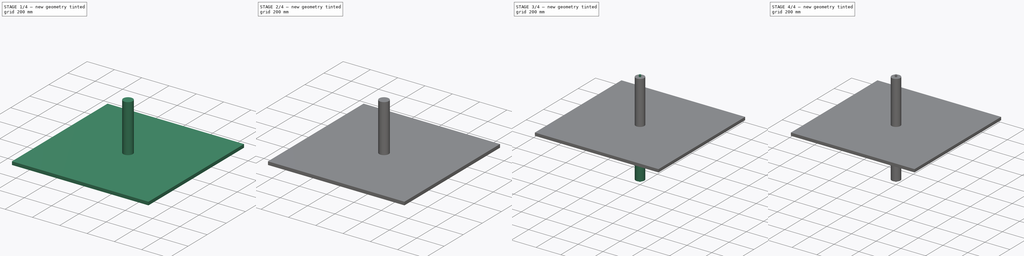
[diagram: build sequence overview — one tinted view per stage of 4, left to right]
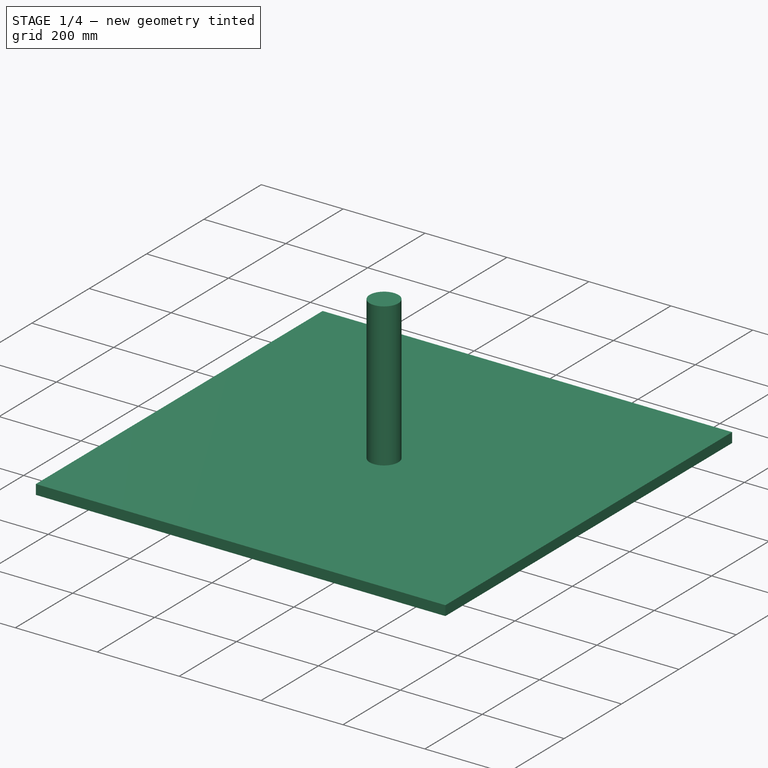
[diagram: stage 1 of 4 — iso view after this stage's code; geometry added in this stage tinted green]
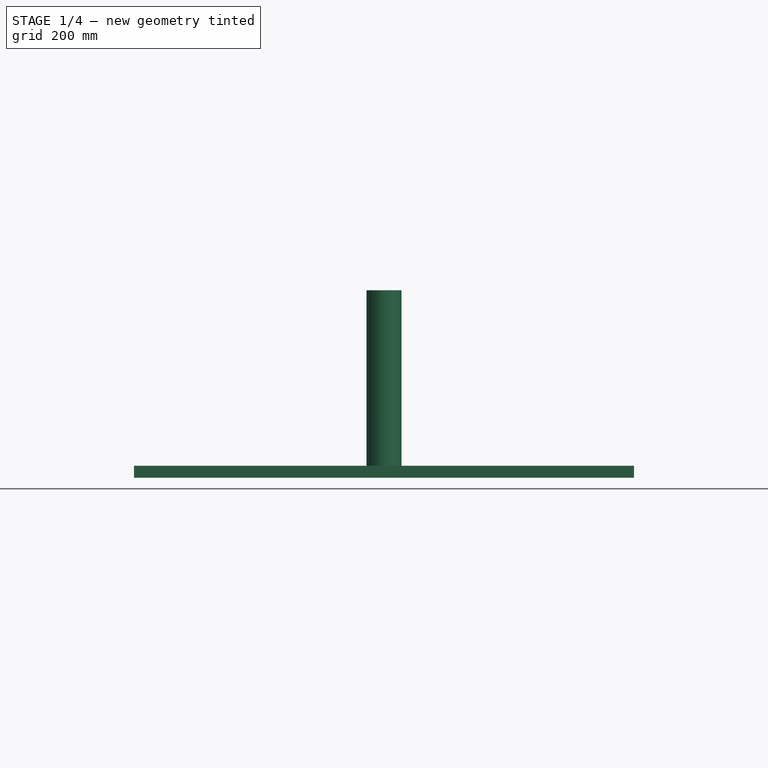
[diagram: stage 1 of 4 — front view after this stage's code; geometry added in this stage tinted green]
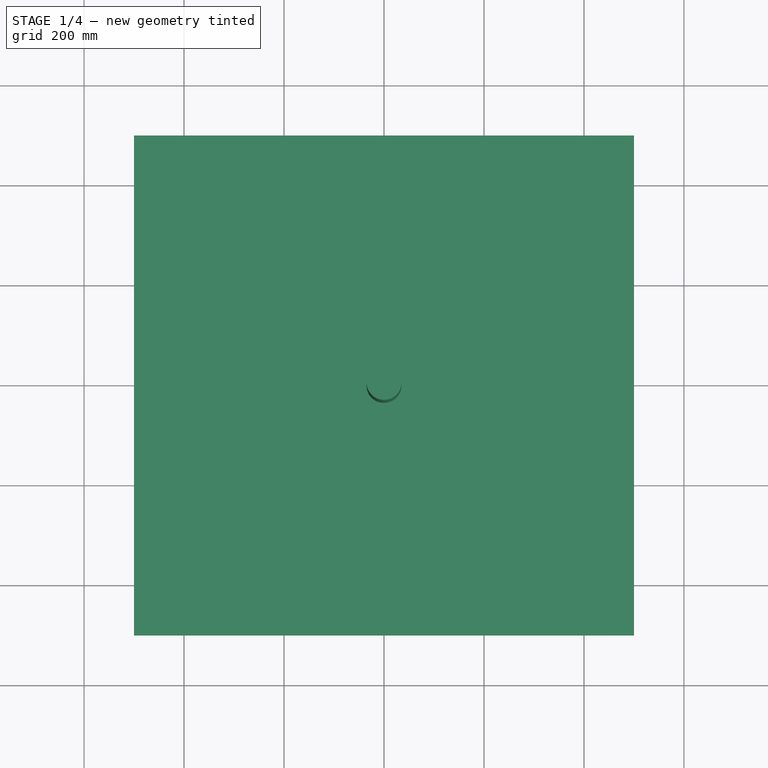
[diagram: stage 1 of 4 — top view after this stage's code; geometry added in this stage tinted green]
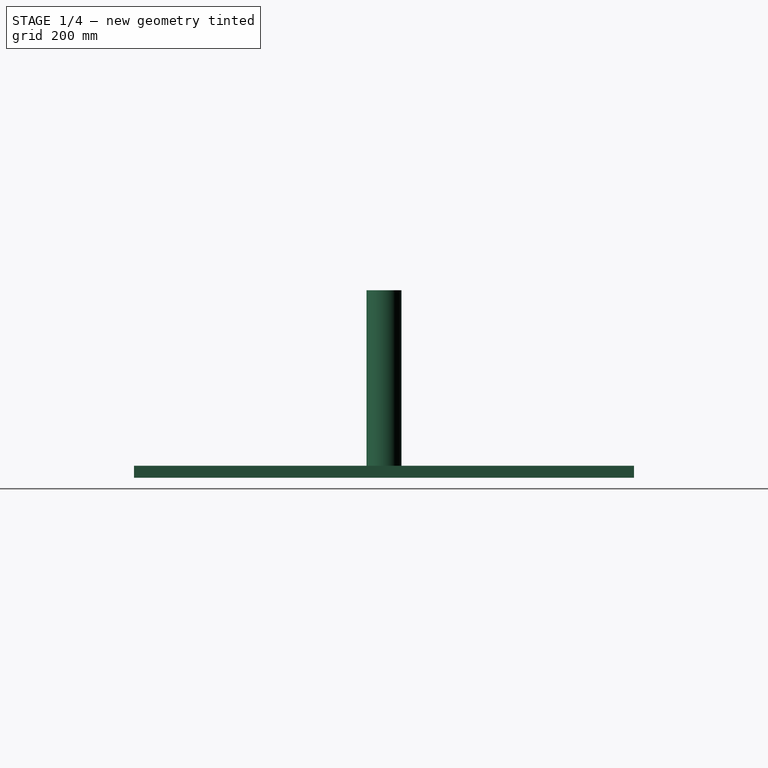
[diagram: stage 1 of 4 — right view after this stage's code; geometry added in this stage tinted green]
FCSTD DOCUMENT  (FreeCAD 0.20R29410 (Git))
Label: Cutting
License: All rights reserved
LicenseURL: http://en.wikipedia.org/wiki/All_rights_reserved
objects: PartDesign::CoordinateSystem×9, App::Part×5, Sketcher::SketchObject×4, PartDesign::Mirrored×4, PartDesign::Body×4, PartDesign::Pad×3, App::DocumentObjectGroup×3, PartDesign::AdditiveCylinder×2, Part::Feature×2, App::Link×2, PartDesign::Pocket×1, PartDesign::MultiTransform×1, App::FeaturePython×1
note: 36 computed .brp shape members not serialized (recipe doc carries the construction recipe); baked Part::Feature solids carry a one-line shape summary decoded from their .brp

FEATURE [PartDesign::Body] Body
  Group = -> [Sketch,Pad,Sketch001,Pocket,Mirrored]
  Origin = -> Origin
  Tip = -> Mirrored
FEATURE [PartDesign::AdditiveCylinder] Cylinder
  Angle = 360
  AttacherType = Attacher::AttachEngine3D
  FirstAngle = 0
  Height = 375
  Radius = 35
  SecondAngle = 0
FEATURE [PartDesign::Body] Body002
  Group = -> [Sketch002,Pad001,MultiTransform,Mirrored002,Mirrored003]
  Origin = -> Origin002
  Tip = -> MultiTransform
FEATURE [Sketcher::SketchObject] Sketch003
  FullyConstrained = true
  MapMode = 5
  Support = -> [XY_Plane003]
  sketch-geometry (5):
    g0: LineSegment StartX=-500 StartY=-500 StartZ=0 EndX=-500 EndY=500 EndZ=0
    g1: LineSegment StartX=-500 StartY=500 StartZ=0 EndX=500 EndY=500 EndZ=0
    g2: LineSegment StartX=500 StartY=500 StartZ=0 EndX=500 EndY=-500 EndZ=0
    g3: LineSegment StartX=500 StartY=-500 StartZ=0 EndX=-500 EndY=-500 EndZ=0
    g4: GeomPoint X=0 Y=2.5e-15 Z=0
  constraints (12):
    c: Coincident(g0,g1)
    c: Coincident(g1,g2)
    c: Coincident(g2,g3)
    c: Coincident(g3,g0)
    c: Horizontal(g1)
    c: Horizontal(g3)
    c: Vertical(g0)
    c: Vertical(g2)
    c: Symmetric(g1,g0,g4)
    c: Coincident(g4,g-1)
    c: Equal(g2,g1)
    c: Distance(g1) = 1000
FEATURE [PartDesign::Pad] Pad002
  Direction = (0,0,1)
  Length = 24
  Length2 = 10
  Profile = -> Sketch003
  ReferenceAxis = -> Sketch003 [N_Axis]
  Type = 0
FEATURE [PartDesign::Body] Body003
  Group = -> [Sketch003,Pad002]
  Origin = -> Origin003
  Tip = -> Pad002
FEATURE [PartDesign::CoordinateSystem] LCS_Origin
  AttacherType = Attacher::AttachEngine3D
  MapMode = 2
  Support = -> [X_Axis004]
FEATURE [App::DocumentObjectGroup] Constraints
FEATURE [App::FeaturePython] Variables  # WARN: FeaturePython — macro-defined, semantics opaque (R4)
  Type = App::PropertyContainer
FEATURE [App::DocumentObjectGroup] Configurations
FEATURE [PartDesign::CoordinateSystem] LCS_0
  AttacherType = Attacher::AttachEngine3D
  AttachmentOffset = pos=(0,0,0) rot=(-1,0,0;1.5708rad)
  MapMode = 2
  Placement = pos=(0,0,0) rot=(-1,0,0;1.5708rad)
  Support = -> [X_Axis005]
FEATURE [PartDesign::CoordinateSystem] LCS_0001
  AttacherType = Attacher::AttachEngine3D
  MapMode = 2
  Support = -> [X_Axis006]
FEATURE [PartDesign::CoordinateSystem] LCS_0002
  AttacherType = Attacher::AttachEngine3D
  MapMode = 2
  Support = -> [X_Axis007]
FEATURE [PartDesign::CoordinateSystem] LCS_0003
  AttacherType = Attacher::AttachEngine3D
  MapMode = 2
  Support = -> [X_Axis008]
FEATURE [PartDesign::CoordinateSystem] bearing_holder_center  label="bearing_holder_hole_center"
  AttacherType = Attacher::AttachEngine3D
  MapMode = 11
  Placement = pos=(0,33,20) rot=(0,1,0;3.14159rad)
  Support = -> [Mirrored]
FEATURE [App::Part] Part  label="bearing_holder"
  Group = -> [LCS_0,Body,bearing_holder_center]
  Origin = -> Origin005
FEATURE [PartDesign::CoordinateSystem] roll_axis
  AttacherType = Attacher::AttachEngine3D
  MapMode = 11
  Placement = pos=(0,0,-375) rot=(0,0,1;1.5708rad)
  Support = -> [Mirrored001]
FEATURE [App::Part] Part_2  label="roll"
  Group = -> [LCS_0001,Body001,roll_axis]
  Origin = -> Origin006
FEATURE [App::Link] plywood  label="plywood001"
  AssemblyType = Part::Link
  AttachedBy = #LCS_0003
  AttachedTo = Parent Assembly#LCS_Origin
  LinkedObject = -> Part_4
  SolverId = Asm4EE
  expr: Placement = LCS_Origin.Placement * AttachmentOffset * LCS_0003.Placement ^ -1
FEATURE [PartDesign::CoordinateSystem] bearing_holder_fixture
  AttacherType = Attacher::AttachEngine3D
  Placement = pos=(375,0,24) rot=(0,0,1;0rad)
  expr: .Placement.Base.x = Cylinder.Height
  expr: .Placement.Base.z = Pad002.Length
FEATURE [App::Part] Part_4  label="plywood"
  Group = -> [LCS_0003,Body003,bearing_holder_fixture]
  Origin = -> Origin008
FEATURE [PartDesign::CoordinateSystem] insertion_bottom
  AttacherType = Attacher::AttachEngine3D
FEATURE [App::Part] Part_3  label="insertion"
  Group = -> [LCS_0002,Body002,insertion_bottom]
  Origin = -> Origin007
FEATURE [App::DocumentObjectGroup] Parts
  Group = -> [Part,Part_2,Part_3,Part_4]
FEATURE [App::Link] insertion  label="insertion001"
  AssemblyType = Part::Link
  AttachedBy = #LCS_0002
  AttachedTo = plywood#bearing_holder_fixture
  LinkPlacement = pos=(375,0,24) rot=(0,0,1;0rad)
  LinkedObject = -> Part_3
  Placement = pos=(375,0,24) rot=(0,0,1;0rad)
  SolverId = Asm4EE
  expr: Placement = plywood.Placement * bearing_holder_fixture.Placement * AttachmentOffset * LCS_0002.Placement ^ -1
FEATURE [App::Part] Model
  AssemblyType = Part::Link
  Group = -> [LCS_Origin,Constraints,Variables,Configurations,plywood,insertion]
  Origin = -> Origin004
  Type = Assembly
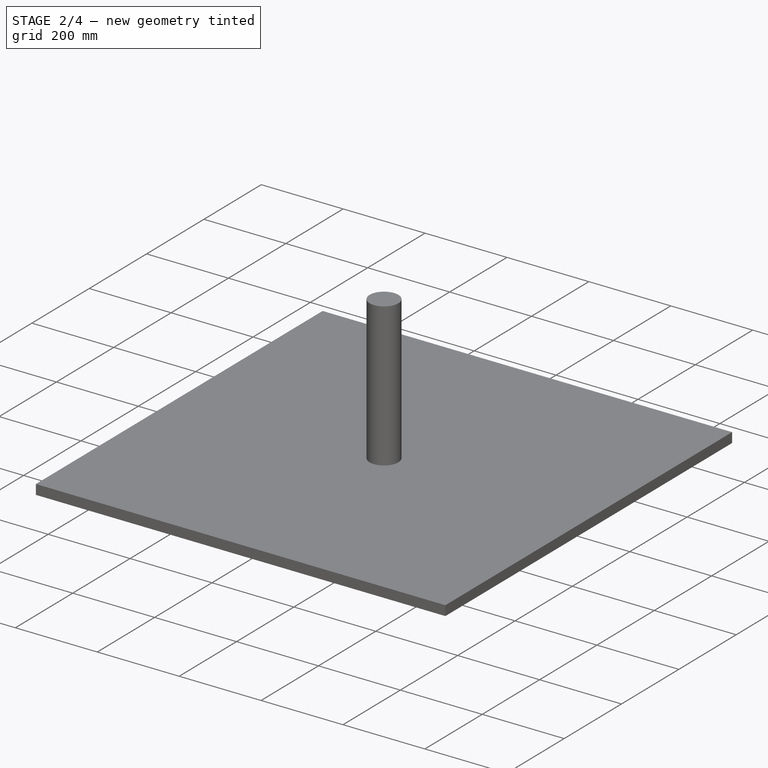
[diagram: stage 2 of 4 — iso view after this stage's code; geometry added in this stage tinted green]
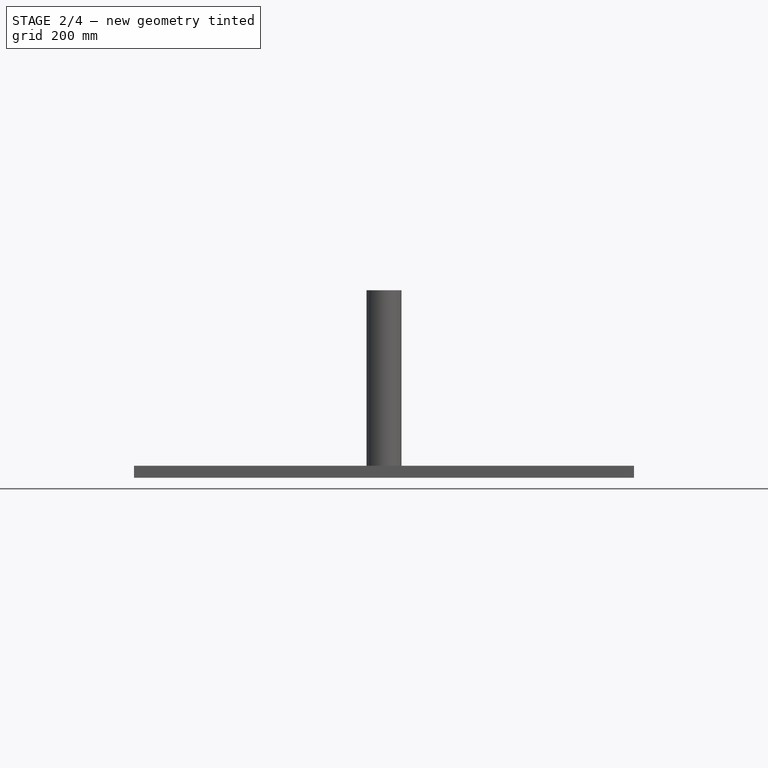
[diagram: stage 2 of 4 — front view after this stage's code; geometry added in this stage tinted green]
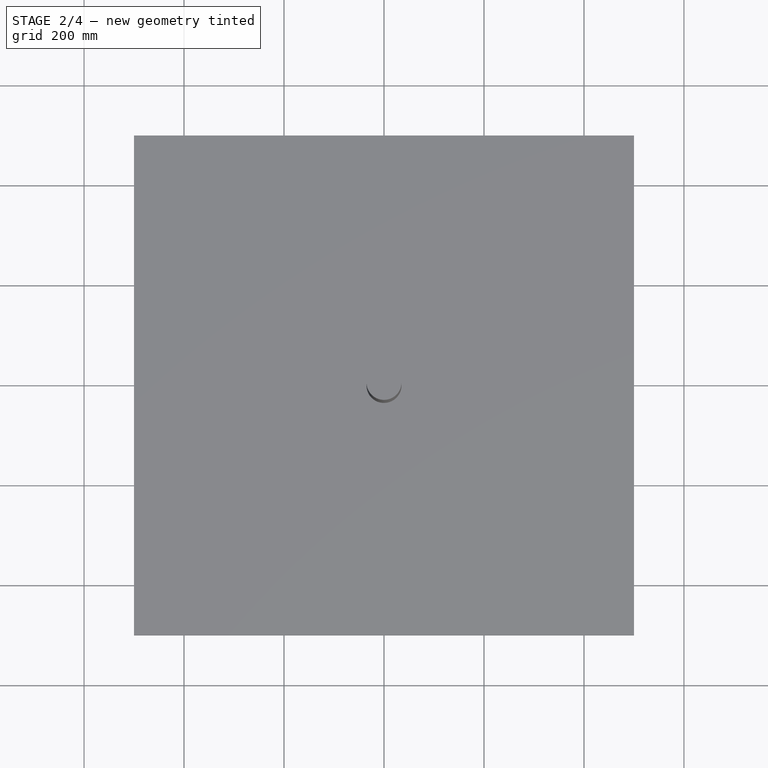
[diagram: stage 2 of 4 — top view after this stage's code; geometry added in this stage tinted green]
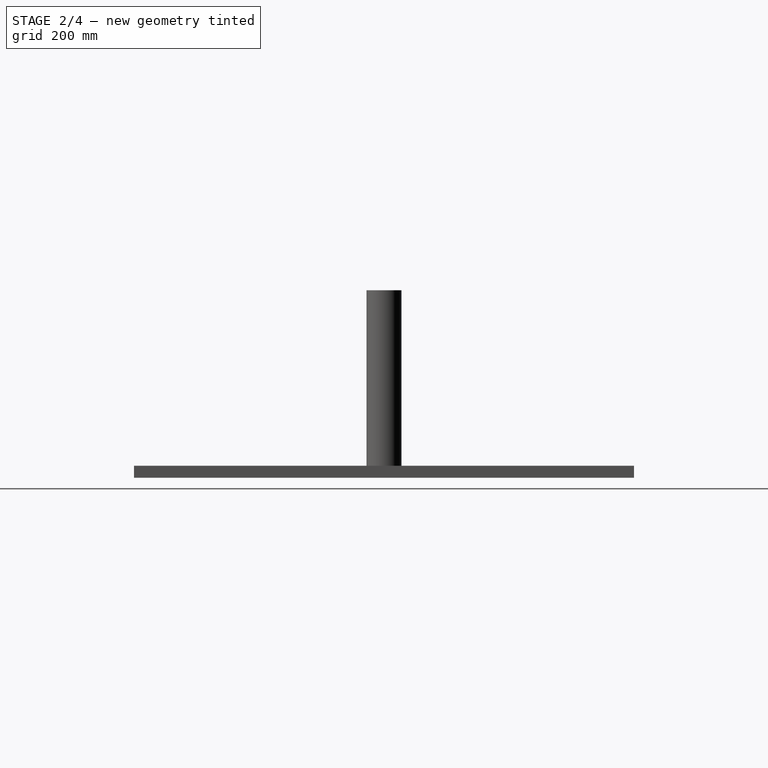
[diagram: stage 2 of 4 — right view after this stage's code; geometry added in this stage tinted green]
FEATURE [Sketcher::SketchObject] Sketch
  FullyConstrained = true
  MapMode = 5
  Support = -> [XY_Plane]
  sketch-geometry (12):
    g0: ArcOfCircle CenterX=0 CenterY=33 CenterZ=0 NormalX=0 NormalY=0 NormalZ=1 AngleXU=0 Radius=7.5 StartAngle=4.71239 EndAngle=7.85398
    g1: ArcOfCircle CenterX=0 CenterY=33 CenterZ=0 NormalX=0 NormalY=0 NormalZ=1 AngleXU=0 Radius=17 StartAngle=0 EndAngle=1.5708
    g2: ArcOfCircle CenterX=35 CenterY=33 CenterZ=0 NormalX=0 NormalY=0 NormalZ=1 AngleXU=0 Radius=18 StartAngle=3.14159 EndAngle=4.71239
    g3: ArcOfCircle CenterX=60 CenterY=10 CenterZ=0 NormalX=0 NormalY=0 NormalZ=1 AngleXU=0 Radius=5 StartAngle=0 EndAngle=1.5708
    g4: LineSegment StartX=65 StartY=10 StartZ=0 EndX=65 EndY=0 EndZ=0
    g5: LineSegment StartX=65 StartY=0 StartZ=0 EndX=0 EndY=0 EndZ=0
    g6: LineSegment StartX=0 StartY=0 StartZ=0 EndX=6.981e-13 EndY=25.5 EndZ=0
    g7: LineSegment StartX=-1.6097e-12 StartY=40.5 StartZ=0 EndX=1e-15 EndY=50 EndZ=0
    g8: LineSegment StartX=47.5 StartY=0 StartZ=0 EndX=47.5 EndY=15 EndZ=0
    g9: LineSegment StartX=35 StartY=15 StartZ=0 EndX=47.5 EndY=15 EndZ=0
    g10: LineSegment StartX=47.5 StartY=15 StartZ=0 EndX=60 EndY=15 EndZ=0
    g11: LineSegment StartX=17 StartY=33 StartZ=0 EndX=17 EndY=0 EndZ=0
  constraints (33):
    c: PointOnObject(g0,g-2)
    c: PointOnObject(g0,g-2)
    c: PointOnObject(g0,g-2)
    c: Coincident(g1,g0)
    c: PointOnObject(g1,g-2)
    c: PointOnObject(g4,g-1)
    c: Vertical(g4)
    c: Coincident(g5,g4)
    c: Coincident(g5,g-1)
    c: Coincident(g6,g5)
    c: Coincident(g6,g0)
    c: Coincident(g7,g0)
    c: Coincident(g7,g1)
    c: DistanceX(g4) = 65  'width'
    c: PointOnObject(g8,g5)
    c: Vertical(g8)
    c: DistanceX(g8) = 47.5  'hole_distance'
    c: DistanceY(g0) = 33  'hole_height'
    c: Tangent(g9,g2) = -1.5708
    c: Tangent(g2,g1) = 1.5708
    c: Distance(g8) = 15
    c: Tangent(g10,g3) = 1.5708
    c: Tangent(g4,g3) = 1.5708
    c: Coincident(g9,g10)
    c: Horizontal(g9)
    c: Horizontal(g10)
    c: Coincident(g9,g8)
    c: Equal(g9,g10)
    c: DistanceX(g2,g3) = 25
    c: Diameter(g0) = 15  'hole_d'
    c: PointOnObject(g11,g-1)
    c: Vertical(g11)
    c: Tangent(g11,g1) = 1.5708
FEATURE [PartDesign::Pad] Pad
  Direction = (0,0,1)
  Length = 40
  Length2 = 10
  Midplane = true
  Profile = -> Sketch
  ReferenceAxis = -> Sketch [N_Axis]
  Type = 0
FEATURE [PartDesign::Body] Body001
  Group = -> [Cylinder,Cylinder001,Mirrored001]
  Origin = -> Origin001
  Tip = -> Mirrored001
FEATURE [Part::Feature] Part__Feature001  label="GHR20"
  shape: bbox 20 x 17.5 x 500 mm, 153 faces (baked)
FEATURE [Part::Feature] Part__Feature002  label="HGH20CA"
  shape: bbox 44.01 x 25.41 x 78.01 mm, 462 faces (baked)
FEATURE [Sketcher::SketchObject] Sketch002
  FullyConstrained = true
  MapMode = 5
  Placement = pos=(0,0,0) rot=(1,0,0;1.5708rad)
  Support = -> [XZ_Plane002]
  expr: Constraints[10] = Sketch.Constraints.width
  expr: Constraints[9] = Pad.Length / 2
  sketch-geometry (4):
    g0: LineSegment StartX=0 StartY=0 StartZ=0 EndX=65 EndY=0 EndZ=0
    g1: LineSegment StartX=65 StartY=0 StartZ=0 EndX=65 EndY=20 EndZ=0
    g2: LineSegment StartX=65 StartY=20 StartZ=0 EndX=0 EndY=20 EndZ=0
    g3: LineSegment StartX=0 StartY=20 StartZ=0 EndX=0 EndY=0 EndZ=0
  constraints (11):
    c: Coincident(g0,g1)
    c: Coincident(g1,g2)
    c: Coincident(g2,g3)
    c: Coincident(g3,g0)
    c: Horizontal(g0)
    c: Horizontal(g2)
    c: Vertical(g1)
    c: Vertical(g3)
    c: Coincident(g0,g-1)
    c: DistanceY(g3,g3) = 20
    c: DistanceX(g0,g0) = 65
FEATURE [PartDesign::Pad] Pad001
  Direction = (0,-1,-2e-16)
  Length = 2
  Length2 = 10
  Placement = pos=(0,0,0) rot=(1,0,0;1.5708rad)
  Profile = -> Sketch002
  ReferenceAxis = -> Sketch002 [N_Axis]
  Type = 0
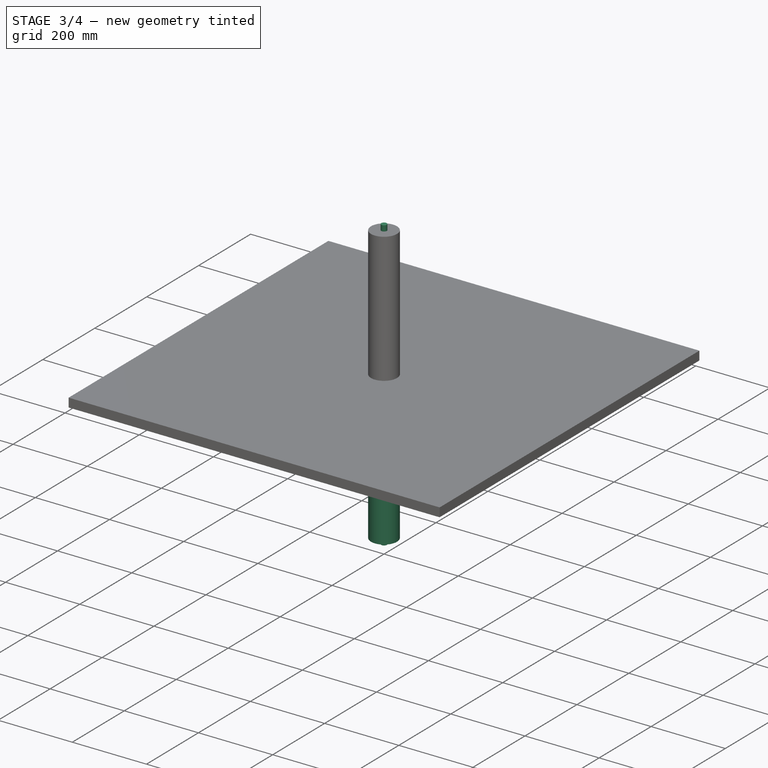
[diagram: stage 3 of 4 — iso view after this stage's code; geometry added in this stage tinted green]
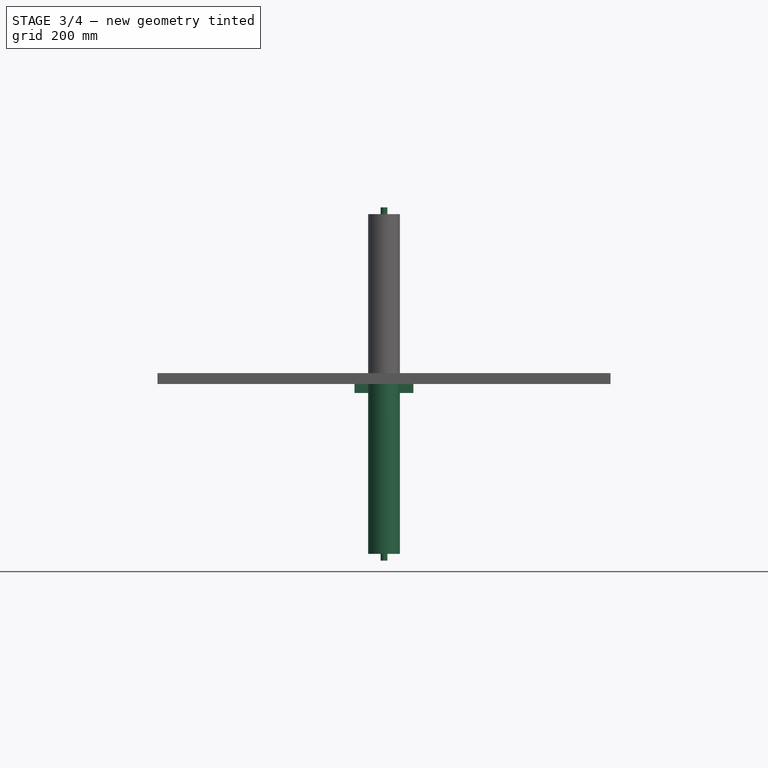
[diagram: stage 3 of 4 — front view after this stage's code; geometry added in this stage tinted green]
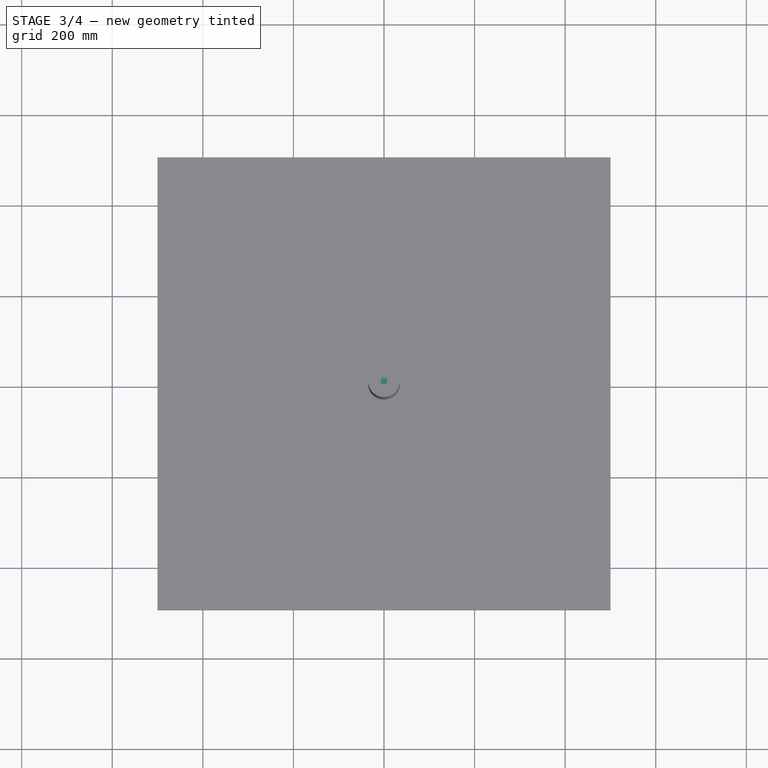
[diagram: stage 3 of 4 — top view after this stage's code; geometry added in this stage tinted green]
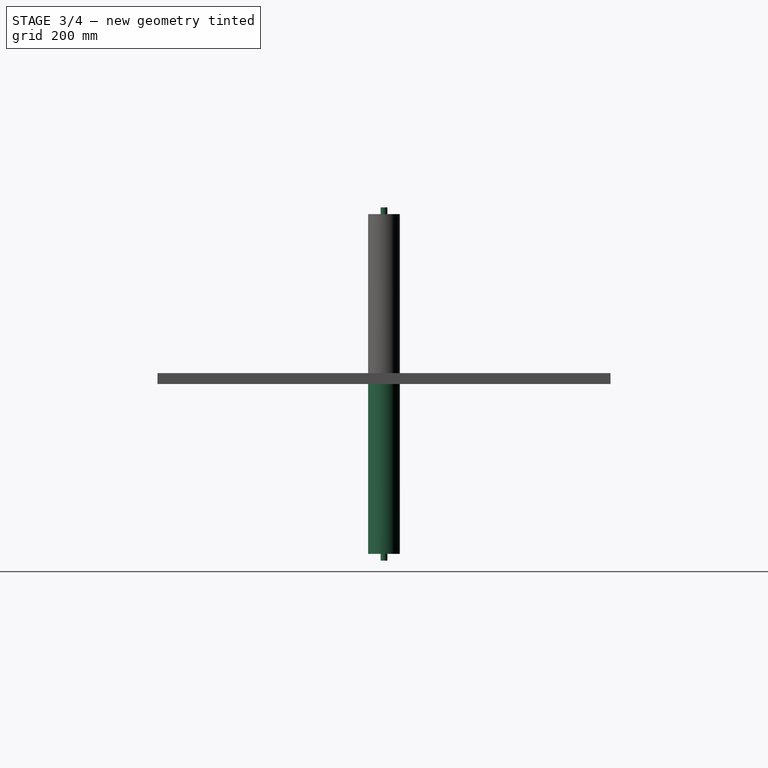
[diagram: stage 3 of 4 — right view after this stage's code; geometry added in this stage tinted green]
FEATURE [PartDesign::AdditiveCylinder] Cylinder001
  Angle = 360
  AttacherType = Attacher::AttachEngine3D
  BaseFeature = -> Cylinder
  FirstAngle = 0
  Height = 390
  MapMode = 5
  Radius = 7.5
  SecondAngle = 0
  Support = -> [XY_Plane001]
FEATURE [PartDesign::Mirrored] Mirrored001
  BaseFeature = -> Cylinder001
  MirrorPlane = -> XY_Plane001
  Originals = -> [Cylinder,Cylinder001]
FEATURE [PartDesign::Mirrored] Mirrored002
  MirrorPlane = -> Sketch002 [V_Axis]
  Placement = pos=(0,0,0) rot=(1,0,0;1.5708rad)
FEATURE [PartDesign::Mirrored] Mirrored003
  MirrorPlane = -> Sketch002 [H_Axis]
  Placement = pos=(0,0,0) rot=(1,0,0;1.5708rad)
FEATURE [PartDesign::MultiTransform] MultiTransform
  BaseFeature = -> Pad001
  Originals = -> [Pad001]
  Placement = pos=(0,0,0) rot=(1,0,0;1.5708rad)
  Transformations = -> [Mirrored002,Mirrored003]
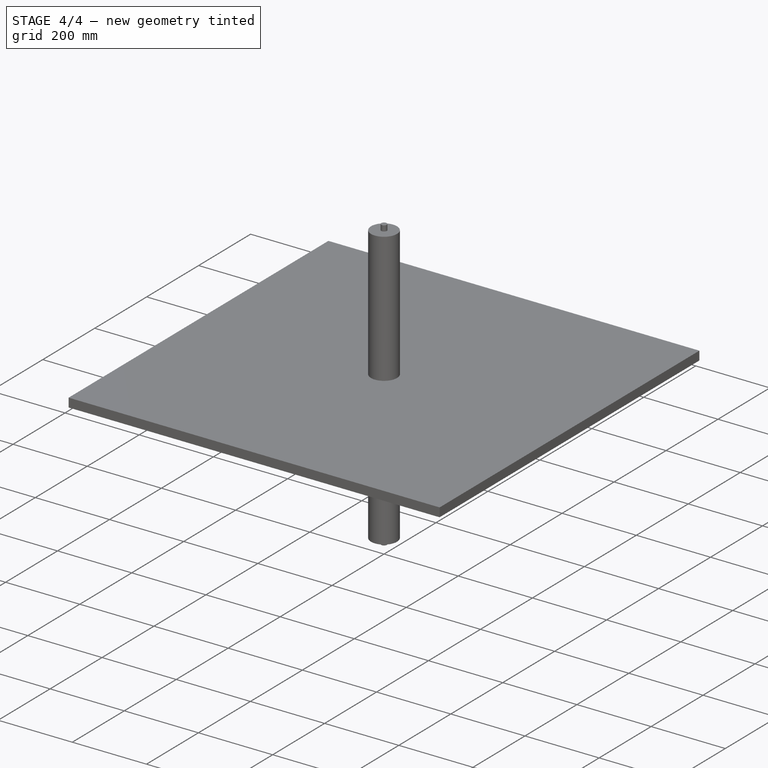
[diagram: stage 4 of 4 — iso view after this stage's code; geometry added in this stage tinted green]
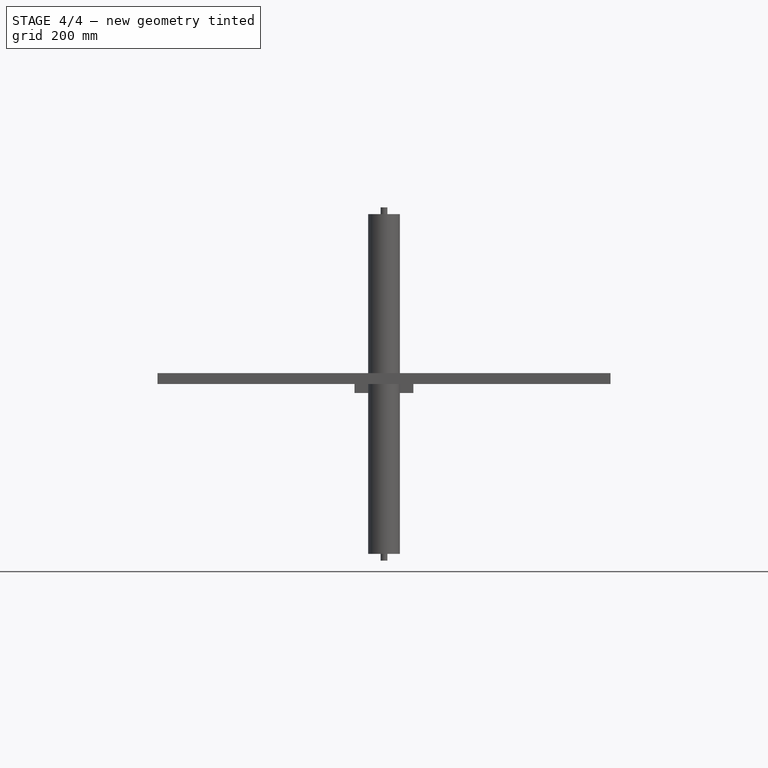
[diagram: stage 4 of 4 — front view after this stage's code; geometry added in this stage tinted green]
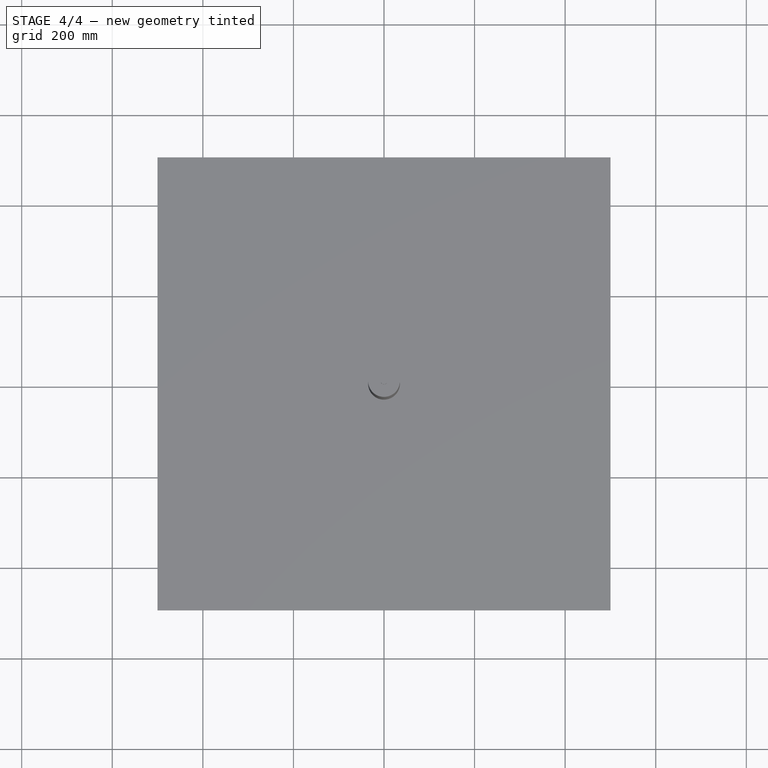
[diagram: stage 4 of 4 — top view after this stage's code; geometry added in this stage tinted green]
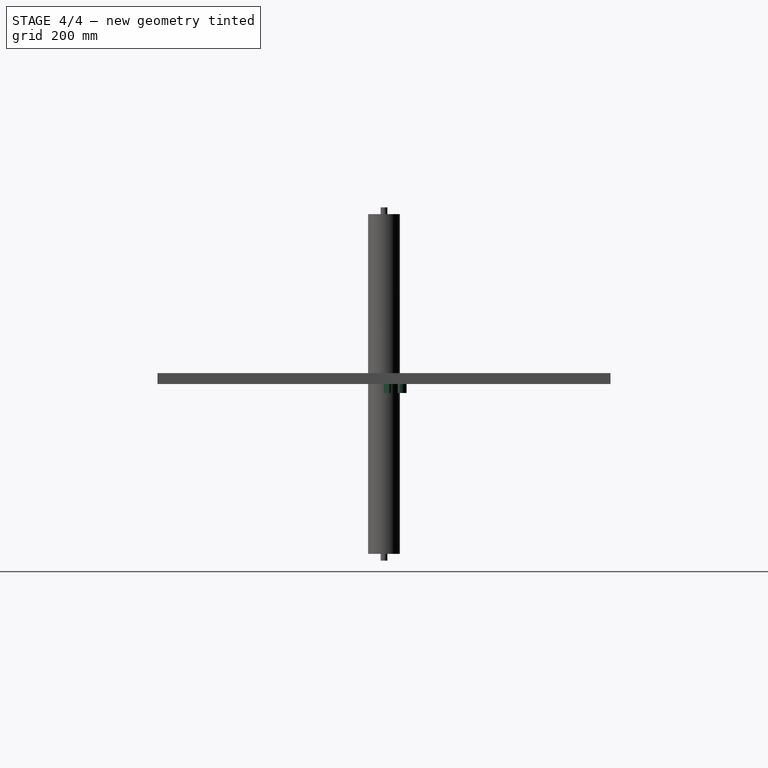
[diagram: stage 4 of 4 — right view after this stage's code; geometry added in this stage tinted green]
FEATURE [Sketcher::SketchObject] Sketch001
  FullyConstrained = true
  MapMode = 5
  Placement = pos=(0,0,0) rot=(1,0,0;1.5708rad)
  Support = -> [XZ_Plane]
  sketch-geometry (8):
    g0: ArcOfCircle CenterX=50 CenterY=0 CenterZ=0 NormalX=0 NormalY=0 NormalZ=1 AngleXU=0 Radius=5 StartAngle=4.71239 EndAngle=7.85398
    g1: ArcOfCircle CenterX=45 CenterY=0 CenterZ=0 NormalX=0 NormalY=0 NormalZ=1 AngleXU=0 Radius=5 StartAngle=1.5708 EndAngle=4.71239
    g2: LineSegment StartX=50 StartY=5 StartZ=0 EndX=45 EndY=5 EndZ=0
    g3: LineSegment StartX=45 StartY=-5 StartZ=0 EndX=50 EndY=-5 EndZ=0
    g4: GeomPoint X=40 Y=0 Z=0
    g5: GeomPoint X=55 Y=0 Z=0
    g6: LineSegment StartX=45 StartY=0 StartZ=0 EndX=47.5 EndY=0 EndZ=0
    g7: LineSegment StartX=47.5 StartY=0 StartZ=0 EndX=50 EndY=0 EndZ=0
  constraints (19):
    c: Tangent(g0,g2) = -1.5708
    c: Tangent(g2,g1) = -1.5708
    c: Tangent(g1,g3) = -1.5708
    c: Tangent(g3,g0) = -1.5708
    c: Equal(g0,g1)
    c: PointOnObject(g0,g-1)
    c: PointOnObject(g1,g-1)
    c: PointOnObject(g4,g1)
    c: PointOnObject(g5,g0)
    c: PointOnObject(g5,g-1)
    c: PointOnObject(g4,g-1)
    c: DistanceX(g4,g5) = 15
    c: DistanceY(g0,g0) = 10
    c: Coincident(g6,g1)
    c: Horizontal(g6)
    c: Coincident(g7,g6)
    c: Coincident(g7,g0)
    c: Equal(g6,g7)
    c: DistanceX(g6) = 47.5
FEATURE [PartDesign::Pocket] Pocket
  BaseFeature = -> Pad
  Direction = (0,1,2e-16)
  Length = 5
  Length2 = 5
  Profile = -> Sketch001
  ReferenceAxis = -> Sketch001 [N_Axis]
  Type = 1
FEATURE [PartDesign::Mirrored] Mirrored
  BaseFeature = -> Pocket
  MirrorPlane = -> Sketch [V_Axis]
  Originals = -> [Pad,Pocket]
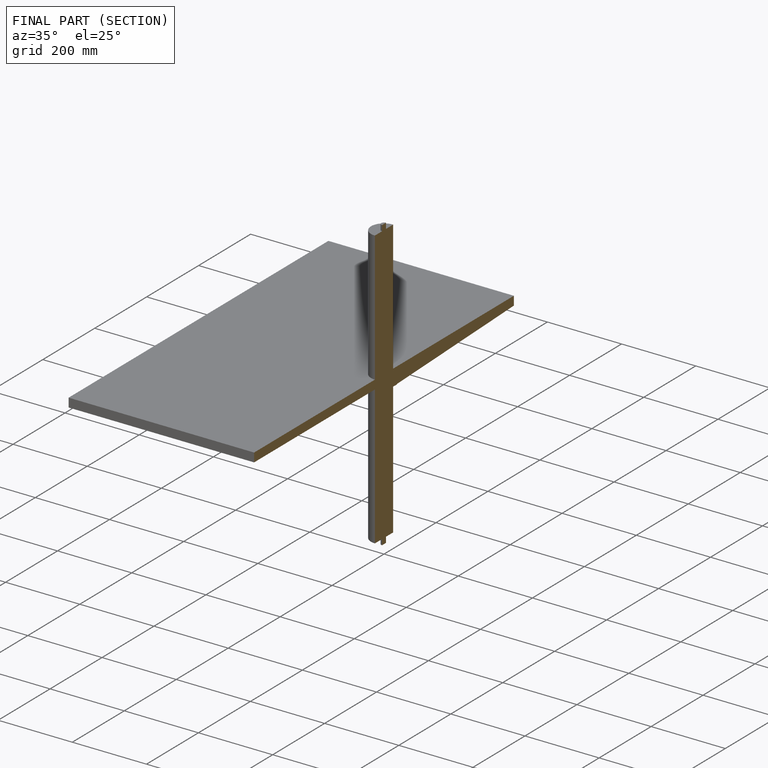
[diagram: finished part — half-section view (interior)]
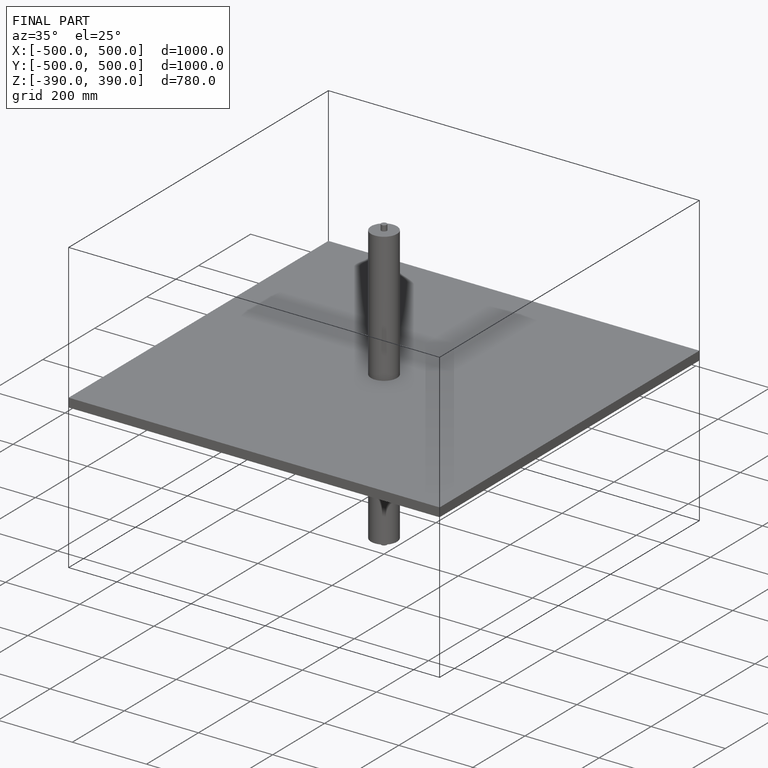
[diagram: finished part — iso view with bounding-box wireframe]
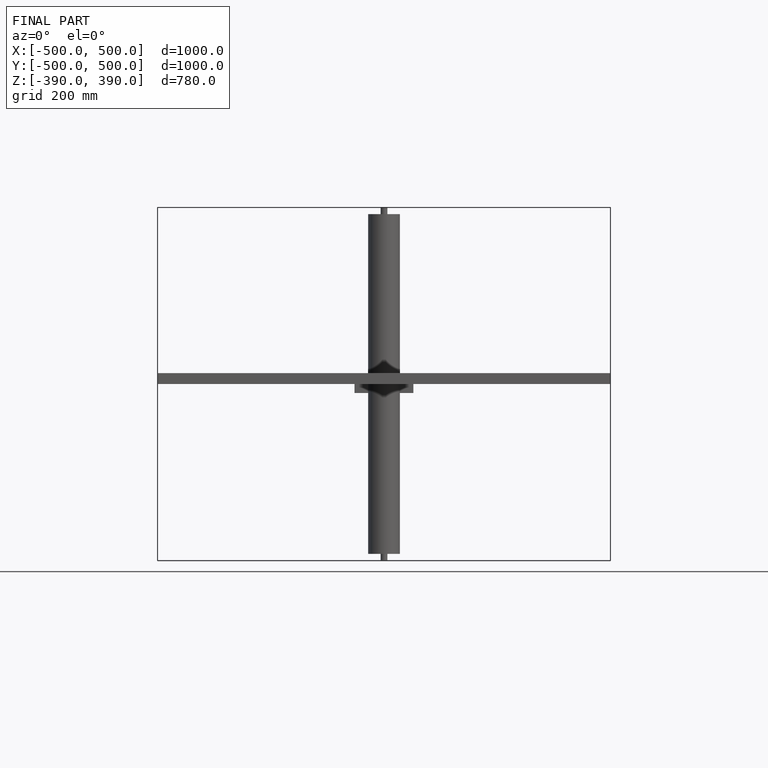
[diagram: finished part — front view with bounding-box wireframe]
